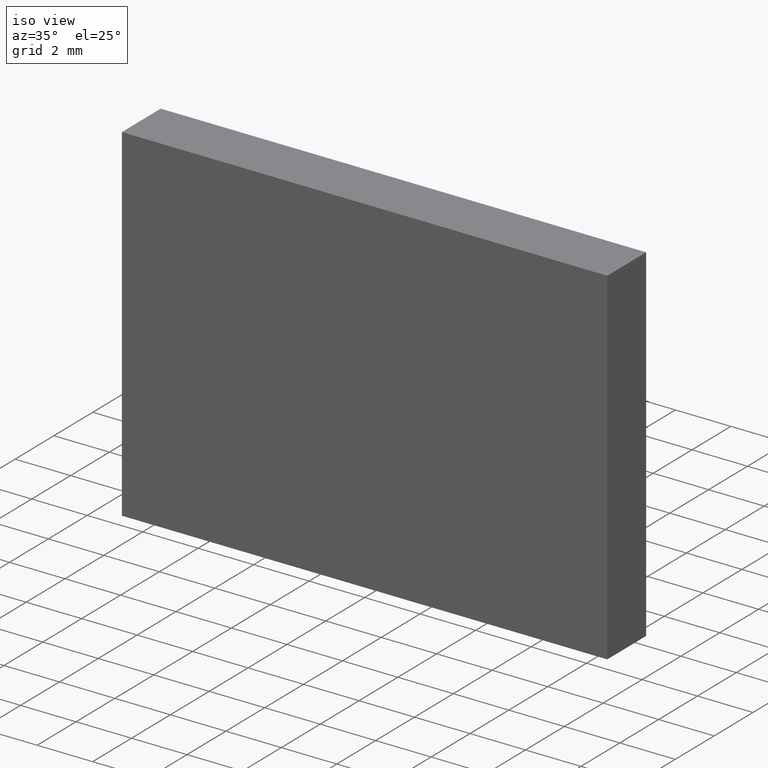
[diagram: clean part render]
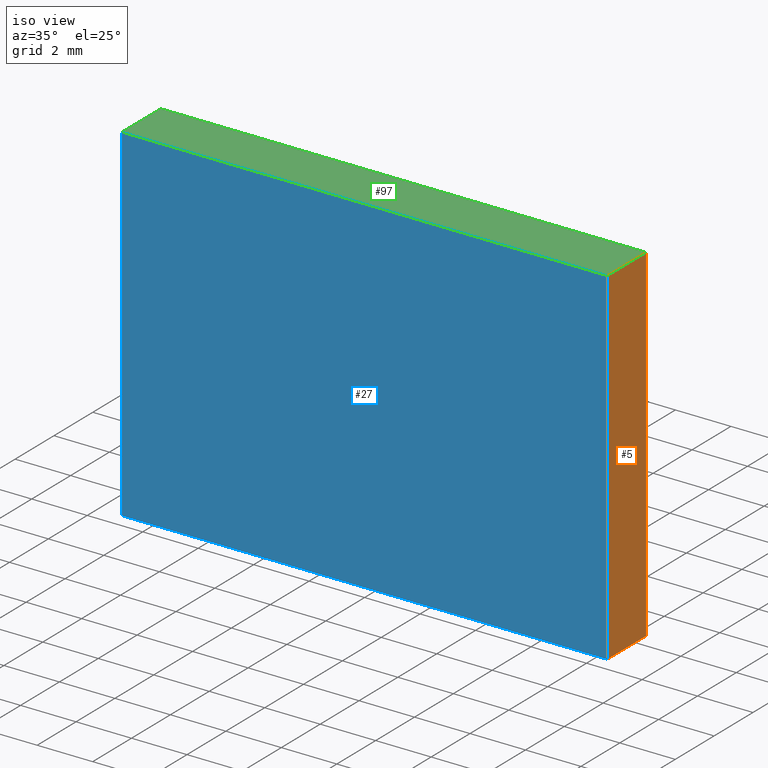
[diagram: same view with three faces highlighted in distinct colors, each labeled with its STEP entity id]
A machine part, iso view with three faces highlighted in distinct colors.
Their STEP definitions:

[orange] entity #5 — the highlighted planar face has unit normal (-1, 0, 0).
#4 = VECTOR ( 'NONE', #81, 1000.000000000000000 ) ;
#5 = ADVANCED_FACE ( 'NONE', ( #33 ), #50, .F. ) ;
#8 = CARTESIAN_POINT ( 'NONE',  ( 8.749999999999998200, 0.0000000000000000000, -6.250000000000001800 ) ) ;
#9 = VECTOR ( 'NONE', #147, 1000.000000000000000 ) ;
#13 = EDGE_CURVE ( 'NONE', #109, #132, #24, .T. ) ;
#16 = DIRECTION ( 'NONE',  ( -1.000000000000000000, 0.0000000000000000000, 2.775557561562891400E-016 ) ) ;
#20 = ORIENTED_EDGE ( 'NONE', *, *, #42, .T. ) ;
#24 = LINE ( 'NONE', #84, #37 ) ;
#33 = FACE_OUTER_BOUND ( 'NONE', #164, .T. ) ;
#37 = VECTOR ( 'NONE', #51, 1000.000000000000000 ) ;
#42 = EDGE_CURVE ( 'NONE', #132, #167, #54, .T. ) ;
#46 = CARTESIAN_POINT ( 'NONE',  ( 8.750000000000000000, 0.0000000000000000000, 6.249999999999998200 ) ) ;
#47 = CARTESIAN_POINT ( 'NONE',  ( 8.749999999999998200, 2.000000000000000000, -6.250000000000001800 ) ) ;
#50 = PLANE ( 'NONE',  #58 ) ;
#51 = DIRECTION ( 'NONE',  ( -0.0000000000000000000, -1.000000000000000000, -0.0000000000000000000 ) ) ;
#54 = LINE ( 'NONE', #102, #4 ) ;
#58 = AXIS2_PLACEMENT_3D ( 'NONE', #75, #16, #104 ) ;
#61 = LINE ( 'NONE', #63, #110 ) ;
#63 = CARTESIAN_POINT ( 'NONE',  ( 8.749999999999998200, 2.000000000000000000, -6.250000000000001800 ) ) ;
#67 = ORIENTED_EDGE ( 'NONE', *, *, #13, .T. ) ;
#73 = EDGE_CURVE ( 'NONE', #96, #167, #145, .T. ) ;
#75 = CARTESIAN_POINT ( 'NONE',  ( 8.749999999999998200, 2.000000000000000000, -6.250000000000001800 ) ) ;
#81 = DIRECTION ( 'NONE',  ( -2.775557561562891400E-016, -0.0000000000000000000, -1.000000000000000000 ) ) ;
#84 = CARTESIAN_POINT ( 'NONE',  ( 8.750000000000000000, 2.000000000000000000, 6.249999999999998200 ) ) ;
#88 = EDGE_CURVE ( 'NONE', #109, #96, #61, .T. ) ;
#96 = VERTEX_POINT ( 'NONE', #127 ) ;
#102 = CARTESIAN_POINT ( 'NONE',  ( 8.749999999999998200, 0.0000000000000000000, -6.250000000000001800 ) ) ;
#104 = DIRECTION ( 'NONE',  ( 2.775557561562891400E-016, 0.0000000000000000000, 1.000000000000000000 ) ) ;
#109 = VERTEX_POINT ( 'NONE', #160 ) ;
#110 = VECTOR ( 'NONE', #175, 1000.000000000000000 ) ;
#126 = ORIENTED_EDGE ( 'NONE', *, *, #73, .F. ) ;
#127 = CARTESIAN_POINT ( 'NONE',  ( 8.749999999999998200, 2.000000000000000000, -6.250000000000001800 ) ) ;
#132 = VERTEX_POINT ( 'NONE', #46 ) ;
#145 = LINE ( 'NONE', #47, #9 ) ;
#147 = DIRECTION ( 'NONE',  ( -0.0000000000000000000, -1.000000000000000000, -0.0000000000000000000 ) ) ;
#155 = ORIENTED_EDGE ( 'NONE', *, *, #88, .F. ) ;
#160 = CARTESIAN_POINT ( 'NONE',  ( 8.750000000000000000, 2.000000000000000000, 6.249999999999998200 ) ) ;
#164 = EDGE_LOOP ( 'NONE', ( #20, #126, #155, #67 ) ) ;
#167 = VERTEX_POINT ( 'NONE', #8 ) ;
#175 = DIRECTION ( 'NONE',  ( -2.775557561562891400E-016, -0.0000000000000000000, -1.000000000000000000 ) ) ;

[blue] entity #27 — the highlighted planar face has unit normal (0, 1, 0).
#4 = VECTOR ( 'NONE', #81, 1000.000000000000000 ) ;
#8 = CARTESIAN_POINT ( 'NONE',  ( 8.749999999999998200, 0.0000000000000000000, -6.250000000000001800 ) ) ;
#10 = DIRECTION ( 'NONE',  ( -1.000000000000000000, -0.0000000000000000000, -0.0000000000000000000 ) ) ;
#18 = ORIENTED_EDGE ( 'NONE', *, *, #42, .F. ) ;
#19 = VECTOR ( 'NONE', #115, 1000.000000000000000 ) ;
#22 = AXIS2_PLACEMENT_3D ( 'NONE', #103, #190, #82 ) ;
#27 = ADVANCED_FACE ( 'NONE', ( #91 ), #149, .F. ) ;
#40 = VECTOR ( 'NONE', #10, 1000.000000000000000 ) ;
#42 = EDGE_CURVE ( 'NONE', #132, #167, #54, .T. ) ;
#45 = DIRECTION ( 'NONE',  ( 1.000000000000000000, 0.0000000000000000000, 0.0000000000000000000 ) ) ;
#46 = CARTESIAN_POINT ( 'NONE',  ( 8.750000000000000000, 0.0000000000000000000, 6.249999999999998200 ) ) ;
#53 = LINE ( 'NONE', #157, #134 ) ;
#54 = LINE ( 'NONE', #102, #4 ) ;
#66 = EDGE_CURVE ( 'NONE', #168, #136, #138, .T. ) ;
#76 = CARTESIAN_POINT ( 'NONE',  ( -8.750000000000001800, 0.0000000000000000000, -6.250000000000001800 ) ) ;
#77 = CARTESIAN_POINT ( 'NONE',  ( -8.750000000000001800, 0.0000000000000000000, -6.250000000000001800 ) ) ;
#81 = DIRECTION ( 'NONE',  ( -2.775557561562891400E-016, -0.0000000000000000000, -1.000000000000000000 ) ) ;
#82 = DIRECTION ( 'NONE',  ( 0.0000000000000000000, -0.0000000000000000000, 1.000000000000000000 ) ) ;
#86 = ORIENTED_EDGE ( 'NONE', *, *, #142, .F. ) ;
#91 = FACE_OUTER_BOUND ( 'NONE', #105, .T. ) ;
#102 = CARTESIAN_POINT ( 'NONE',  ( 8.749999999999998200, 0.0000000000000000000, -6.250000000000001800 ) ) ;
#103 = CARTESIAN_POINT ( 'NONE',  ( 0.0000000000000000000, 0.0000000000000000000, 0.0000000000000000000 ) ) ;
#105 = EDGE_LOOP ( 'NONE', ( #18, #86, #107, #144 ) ) ;
#107 = ORIENTED_EDGE ( 'NONE', *, *, #66, .F. ) ;
#115 = DIRECTION ( 'NONE',  ( 1.387778780781445700E-016, 0.0000000000000000000, 1.000000000000000000 ) ) ;
#129 = CARTESIAN_POINT ( 'NONE',  ( -8.750000000000001800, 0.0000000000000000000, -6.250000000000001800 ) ) ;
#132 = VERTEX_POINT ( 'NONE', #46 ) ;
#134 = VECTOR ( 'NONE', #45, 1000.000000000000000 ) ;
#136 = VERTEX_POINT ( 'NONE', #146 ) ;
#138 = LINE ( 'NONE', #129, #19 ) ;
#142 = EDGE_CURVE ( 'NONE', #136, #132, #53, .T. ) ;
#144 = ORIENTED_EDGE ( 'NONE', *, *, #148, .F. ) ;
#146 = CARTESIAN_POINT ( 'NONE',  ( -8.750000000000000000, 0.0000000000000000000, 6.249999999999998200 ) ) ;
#148 = EDGE_CURVE ( 'NONE', #167, #168, #174, .T. ) ;
#149 = PLANE ( 'NONE',  #22 ) ;
#157 = CARTESIAN_POINT ( 'NONE',  ( -8.750000000000000000, 0.0000000000000000000, 6.249999999999998200 ) ) ;
#167 = VERTEX_POINT ( 'NONE', #8 ) ;
#168 = VERTEX_POINT ( 'NONE', #76 ) ;
#174 = LINE ( 'NONE', #77, #40 ) ;
#190 = DIRECTION ( 'NONE',  ( 0.0000000000000000000, 1.000000000000000000, 0.0000000000000000000 ) ) ;

[green] entity #97 — the highlighted planar face has unit normal (0, 0, -1).
#3 = FACE_OUTER_BOUND ( 'NONE', #153, .T. ) ;
#13 = EDGE_CURVE ( 'NONE', #109, #132, #24, .T. ) ;
#24 = LINE ( 'NONE', #84, #37 ) ;
#28 = DIRECTION ( 'NONE',  ( -0.0000000000000000000, -1.000000000000000000, -0.0000000000000000000 ) ) ;
#29 = CARTESIAN_POINT ( 'NONE',  ( -8.750000000000000000, 2.000000000000000000, 6.249999999999998200 ) ) ;
#37 = VECTOR ( 'NONE', #51, 1000.000000000000000 ) ;
#45 = DIRECTION ( 'NONE',  ( 1.000000000000000000, 0.0000000000000000000, 0.0000000000000000000 ) ) ;
#46 = CARTESIAN_POINT ( 'NONE',  ( 8.750000000000000000, 0.0000000000000000000, 6.249999999999998200 ) ) ;
#48 = DIRECTION ( 'NONE',  ( 1.000000000000000000, 0.0000000000000000000, 0.0000000000000000000 ) ) ;
#51 = DIRECTION ( 'NONE',  ( -0.0000000000000000000, -1.000000000000000000, -0.0000000000000000000 ) ) ;
#53 = LINE ( 'NONE', #157, #134 ) ;
#64 = EDGE_CURVE ( 'NONE', #89, #109, #69, .T. ) ;
#69 = LINE ( 'NONE', #189, #179 ) ;
#78 = DIRECTION ( 'NONE',  ( -1.000000000000000000, 0.0000000000000000000, -0.0000000000000000000 ) ) ;
#84 = CARTESIAN_POINT ( 'NONE',  ( 8.750000000000000000, 2.000000000000000000, 6.249999999999998200 ) ) ;
#89 = VERTEX_POINT ( 'NONE', #29 ) ;
#97 = ADVANCED_FACE ( 'NONE', ( #3 ), #199, .F. ) ;
#100 = CARTESIAN_POINT ( 'NONE',  ( -8.750000000000000000, 2.000000000000000000, 6.249999999999998200 ) ) ;
#108 = AXIS2_PLACEMENT_3D ( 'NONE', #100, #187, #78 ) ;
#109 = VERTEX_POINT ( 'NONE', #160 ) ;
#120 = EDGE_CURVE ( 'NONE', #89, #136, #181, .T. ) ;
#121 = ORIENTED_EDGE ( 'NONE', *, *, #120, .T. ) ;
#132 = VERTEX_POINT ( 'NONE', #46 ) ;
#134 = VECTOR ( 'NONE', #45, 1000.000000000000000 ) ;
#135 = VECTOR ( 'NONE', #28, 1000.000000000000000 ) ;
#136 = VERTEX_POINT ( 'NONE', #146 ) ;
#142 = EDGE_CURVE ( 'NONE', #136, #132, #53, .T. ) ;
#146 = CARTESIAN_POINT ( 'NONE',  ( -8.750000000000000000, 0.0000000000000000000, 6.249999999999998200 ) ) ;
#153 = EDGE_LOOP ( 'NONE', ( #166, #180, #194, #121 ) ) ;
#157 = CARTESIAN_POINT ( 'NONE',  ( -8.750000000000000000, 0.0000000000000000000, 6.249999999999998200 ) ) ;
#159 = CARTESIAN_POINT ( 'NONE',  ( -8.750000000000000000, 2.000000000000000000, 6.249999999999998200 ) ) ;
#160 = CARTESIAN_POINT ( 'NONE',  ( 8.750000000000000000, 2.000000000000000000, 6.249999999999998200 ) ) ;
#166 = ORIENTED_EDGE ( 'NONE', *, *, #142, .T. ) ;
#179 = VECTOR ( 'NONE', #48, 1000.000000000000000 ) ;
#180 = ORIENTED_EDGE ( 'NONE', *, *, #13, .F. ) ;
#181 = LINE ( 'NONE', #159, #135 ) ;
#187 = DIRECTION ( 'NONE',  ( 0.0000000000000000000, 0.0000000000000000000, -1.000000000000000000 ) ) ;
#189 = CARTESIAN_POINT ( 'NONE',  ( -8.750000000000000000, 2.000000000000000000, 6.249999999999998200 ) ) ;
#194 = ORIENTED_EDGE ( 'NONE', *, *, #64, .F. ) ;
#199 = PLANE ( 'NONE',  #108 ) ;